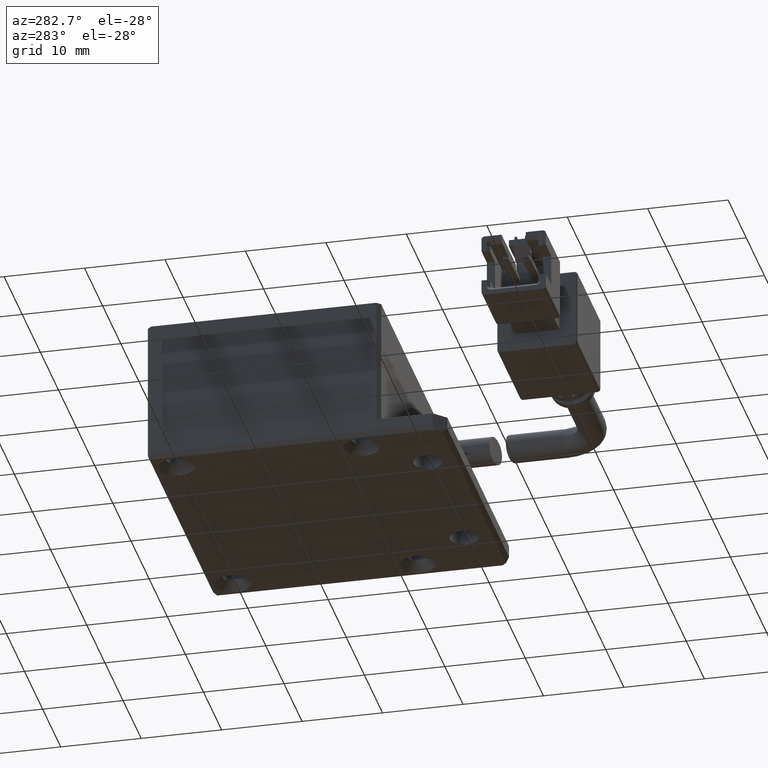
[diagram: clean part render]
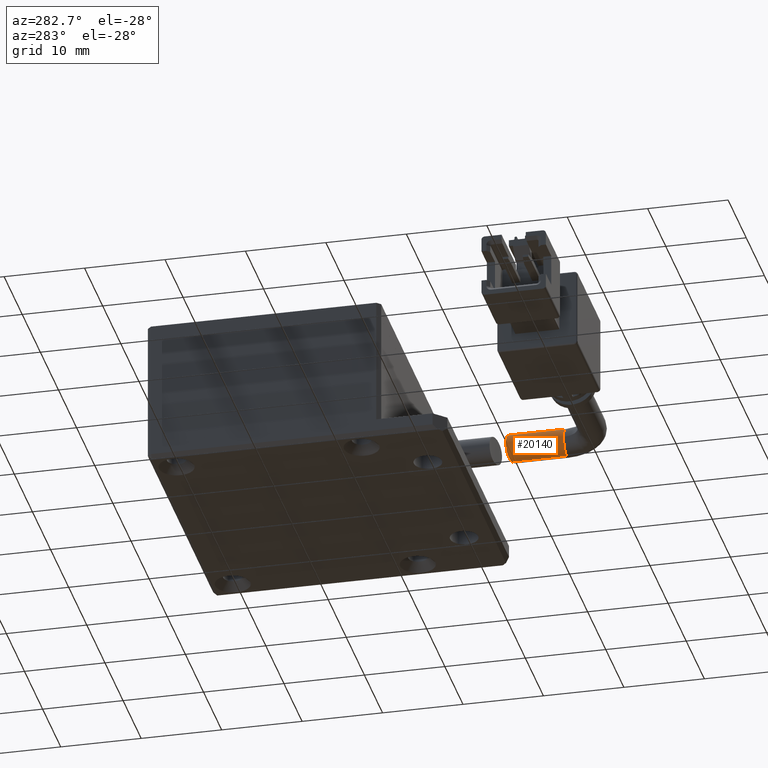
[diagram: same view with one face highlighted and labeled with its STEP entity id]
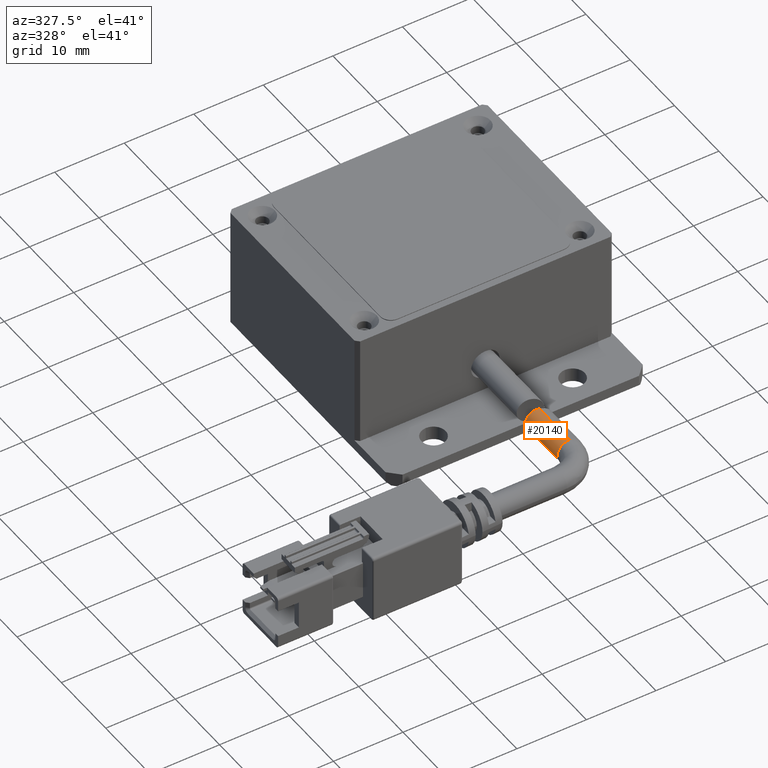
[diagram: same view with one face highlighted and labeled with its STEP entity id]
A machine part, auxiliary view. The second image highlights one B-rep face of the part: STEP entity #20140.
A second angle (auxiliary view) of the same face is appended — the face is thin or edge-on in the first view.
In plain terms, the highlighted cylindrical surface (edge-blend (fillet) strip) has radius 1.75 mm, axis along (-0, 1, 0).
Its self-contained STEP definition (entity closure, byte-faithful):
#46 = VERTEX_POINT ( 'NONE', #6970 ) ;
#440 = VERTEX_POINT ( 'NONE', #19045 ) ;
#611 = CARTESIAN_POINT ( 'NONE',  ( 0.2452600097851520300, -27.20333256233376700, 5.739056602235873300 ) ) ;
#680 = CARTESIAN_POINT ( 'NONE',  ( -1.279519287267200800, -26.87800755873524500, 3.886318930238931800 ) ) ;
#752 = CARTESIAN_POINT ( 'NONE',  ( 0.2435046633691347600, -27.20281811077919400, 2.249999999983630400 ) ) ;
#2170 = CARTESIAN_POINT ( 'NONE',  ( -0.08459173293410250600, -27.12333227706190900, 5.663483449324457900 ) ) ;
#2186 = DIRECTION ( 'NONE',  ( -6.162975822039154700E-033, 1.000000000000000000, 0.0000000000000000000 ) ) ;
#2245 = CARTESIAN_POINT ( 'NONE',  ( -1.222303235186197100, -26.88723953335685800, 3.541711821612489000 ) ) ;
#2258 = ORIENTED_EDGE ( 'NONE', *, *, #6270, .F. ) ;
#2515 = LINE ( 'NONE', #17087, #6135 ) ;
#3751 = CARTESIAN_POINT ( 'NONE',  ( -0.3951779284447604100, -27.05142310167667200, 5.525071375225639500 ) ) ;
#3828 = CARTESIAN_POINT ( 'NONE',  ( -1.099193011287674000, -26.90823696468707400, 3.217920643674270200 ) ) ;
#3848 = DIRECTION ( 'NONE',  ( 0.0000000000000000000, 0.0000000000000000000, -1.000000000000000000 ) ) ;
#4640 = CARTESIAN_POINT ( 'NONE',  ( 0.4705994654448234500, -34.05364642993505000, 5.749999999983630000 ) ) ;
#4894 = LINE ( 'NONE', #4640, #12742 ) ;
#5314 = CARTESIAN_POINT ( 'NONE',  ( -0.6757712382793642500, -26.99041040257456800, 5.327197117374365300 ) ) ;
#5388 = CARTESIAN_POINT ( 'NONE',  ( -0.9145691337533155000, -26.94235202430891400, 2.924358018452224000 ) ) ;
#5478 = VERTEX_POINT ( 'NONE', #14498 ) ;
#6135 = VECTOR ( 'NONE', #15531, 1000.000000000000000 ) ;
#6270 = EDGE_CURVE ( 'NONE', #46, #5478, #13754, .T. ) ;
#6715 = EDGE_CURVE ( 'NONE', #10077, #46, #13018, .T. ) ;
#6863 = EDGE_CURVE ( 'NONE', #10077, #440, #4894, .T. ) ;
#6876 = CARTESIAN_POINT ( 'NONE',  ( -0.9123115448872086700, -26.94278530044179100, 5.078601961225644800 ) ) ;
#6943 = CARTESIAN_POINT ( 'NONE',  ( -0.6764877850143830000, -26.99025578251614000, 2.673313212597746300 ) ) ;
#6970 = CARTESIAN_POINT ( 'NONE',  ( -1.279400534555176400, -34.05364642993505000, 3.999999999983630400 ) ) ;
#7076 = EDGE_CURVE ( 'NONE', #440, #9849, #14555, .T. ) ;
#7206 = EDGE_CURVE ( 'NONE', #5478, #9849, #2515, .T. ) ;
#7940 = CARTESIAN_POINT ( 'NONE',  ( 0.4705994654448236700, -34.05364642993505000, 3.999999999983630400 ) ) ;
#8379 = ORIENTED_EDGE ( 'NONE', *, *, #7076, .T. ) ;
#8467 = CARTESIAN_POINT ( 'NONE',  ( -1.097927890729691200, -26.90846123897170000, 4.784531324799246500 ) ) ;
#8547 = CARTESIAN_POINT ( 'NONE',  ( -0.3978064653006773100, -27.05083243922934600, 2.476425465575045100 ) ) ;
#8962 = CARTESIAN_POINT ( 'NONE',  ( 0.4705994654448236700, -34.05364642993505000, 3.999999999983630400 ) ) ;
#9340 = EDGE_LOOP ( 'NONE', ( #17709, #15681, #8379, #13642, #2258 ) ) ;
#9493 = DIRECTION ( 'NONE',  ( 1.000000000000000000, 0.0000000000000000000, 0.0000000000000000000 ) ) ;
#9849 = VERTEX_POINT ( 'NONE', #17244 ) ;
#10008 = CARTESIAN_POINT ( 'NONE',  ( -1.279160209847827400, -26.87806455576740200, 4.232802954368057000 ) ) ;
#10077 = VERTEX_POINT ( 'NONE', #14830 ) ;
#10080 = CARTESIAN_POINT ( 'NONE',  ( 0.01944674899311930200, -27.14762926867686900, 2.293982588345354400 ) ) ;
#10515 = DIRECTION ( 'NONE',  ( 1.000000000000000000, 0.0000000000000000000, 0.0000000000000000000 ) ) ;
#10907 = AXIS2_PLACEMENT_3D ( 'NONE', #7940, #18776, #9493 ) ;
#11526 = CARTESIAN_POINT ( 'NONE',  ( 0.02496185331614199700, -27.14959919842991500, 5.696025605559903200 ) ) ;
#11603 = CARTESIAN_POINT ( 'NONE',  ( -1.267972409514772900, -26.87981943265807400, 3.769098627449780200 ) ) ;
#11683 = CARTESIAN_POINT ( 'NONE',  ( 0.4705994654448236700, -27.25921603604882600, 2.249999999983630000 ) ) ;
#12742 = VECTOR ( 'NONE', #15544, 1000.000000000000000 ) ;
#13018 = CIRCLE ( 'NONE', #14334, 1.749999999999999800 ) ;
#13144 = CARTESIAN_POINT ( 'NONE',  ( -0.2950688147132116700, -27.07416301121804400, 5.577709269065904300 ) ) ;
#13207 = CARTESIAN_POINT ( 'NONE',  ( -1.188520566319569500, -26.89279895207828700, 3.431478004130055700 ) ) ;
#13642 = ORIENTED_EDGE ( 'NONE', *, *, #7206, .F. ) ;
#13754 = CIRCLE ( 'NONE', #10907, 1.749999999999999800 ) ;
#14334 = AXIS2_PLACEMENT_3D ( 'NONE', #8962, #19803, #10515 ) ;
#14498 = CARTESIAN_POINT ( 'NONE',  ( 0.4705994654448236700, -34.05364642993505000, 2.249999999983630000 ) ) ;
#14555 = B_SPLINE_CURVE_WITH_KNOTS ( 'NONE', 3,
 ( #19231, #14602, #611, #11526, #2170, #13144, #3751, #14666, #5314, #16228, #6876, #17749, #8467, #19306, #10008, #680, #11603, #2245, #13207, #3828, #14747, #5388, #16299, #6943, #17809, #8547, #19379, #10080, #752, #11683 ),
 .UNSPECIFIED., .F., .F.,
 ( 4, 2, 2, 2, 2, 2, 2, 2, 2, 2, 2, 2, 2, 2, 4 ),
 ( 0.005543457705843022000, 0.005889546929886216500, 0.006235636153929411000, 0.006581725377972605500, 0.006927814602015800100, 0.007273903826058994600, 0.007619993050102189100, 0.008312171498188580800, 0.008658260722231775300, 0.009004349946274971600, 0.009350439170318167900, 0.009696528394361362400, 0.01004261761840455700, 0.01038870684244775500, 0.01108088529053414400 ),
 .UNSPECIFIED. ) ;
#14602 = CARTESIAN_POINT ( 'NONE',  ( 0.3570438799052290700, -27.23101504083153300, 5.749999999982570400 ) ) ;
#14666 = CARTESIAN_POINT ( 'NONE',  ( -0.5851367675855607700, -27.00962045135763700, 5.400297897439599200 ) ) ;
#14747 = CARTESIAN_POINT ( 'NONE',  ( -1.043299927648960100, -26.91819711370314700, 3.114671615581763300 ) ) ;
#14830 = CARTESIAN_POINT ( 'NONE',  ( 0.4705994654448234500, -34.05364642993505000, 5.749999999983630900 ) ) ;
#15531 = DIRECTION ( 'NONE',  ( -6.162975822039154700E-033, 1.000000000000000000, 0.0000000000000000000 ) ) ;
#15544 = DIRECTION ( 'NONE',  ( -6.162975822039154700E-033, 1.000000000000000000, 0.0000000000000000000 ) ) ;
#15681 = ORIENTED_EDGE ( 'NONE', *, *, #6863, .T. ) ;
#16228 = CARTESIAN_POINT ( 'NONE',  ( -0.8389757934518818900, -26.95708371996876800, 5.166460723734324700 ) ) ;
#16239 = AXIS2_PLACEMENT_3D ( 'NONE', #17767, #2186, #3848 ) ;
#16299 = CARTESIAN_POINT ( 'NONE',  ( -0.8412831068135762100, -26.95662101567517500, 2.836010692217006300 ) ) ;
#17087 = CARTESIAN_POINT ( 'NONE',  ( 0.4705994654448236700, -34.05364642993505000, 2.249999999983630400 ) ) ;
#17244 = CARTESIAN_POINT ( 'NONE',  ( 0.4705994654448236700, -27.25921603604882600, 2.249999999983630000 ) ) ;
#17251 = FACE_OUTER_BOUND ( 'NONE', #9340, .T. ) ;
#17709 = ORIENTED_EDGE ( 'NONE', *, *, #6715, .F. ) ;
#17749 = CARTESIAN_POINT ( 'NONE',  ( -1.042007378630152900, -26.91843024275081600, 4.887606663179792800 ) ) ;
#17767 = CARTESIAN_POINT ( 'NONE',  ( 0.4705994654448236700, -34.05364642993505000, 3.999999999983630400 ) ) ;
#17809 = CARTESIAN_POINT ( 'NONE',  ( -0.5875148245012435900, -27.00910968139701400, 2.601499956414011500 ) ) ;
#18776 = DIRECTION ( 'NONE',  ( -1.836970198721029700E-016, -1.000000000000000000, 1.232595164407830900E-032 ) ) ;
#19045 = CARTESIAN_POINT ( 'NONE',  ( 0.4705994654448241200, -27.25921603604883000, 5.749999999983630900 ) ) ;
#19231 = CARTESIAN_POINT ( 'NONE',  ( 0.4705994654448241200, -27.25921603604883000, 5.749999999983630900 ) ) ;
#19306 = CARTESIAN_POINT ( 'NONE',  ( -1.231874787897236700, -26.88529524790412500, 4.465994939276349400 ) ) ;
#19379 = CARTESIAN_POINT ( 'NONE',  ( -0.2958193997448675400, -27.07399134013817800, 2.422665010618552100 ) ) ;
#19419 = CYLINDRICAL_SURFACE ( 'NONE', #16239, 1.749999999999999800 ) ;
#19803 = DIRECTION ( 'NONE',  ( -1.836970198721029700E-016, -1.000000000000000000, 1.232595164407830900E-032 ) ) ;
#20140 = ADVANCED_FACE ( 'NONE', ( #17251 ), #19419, .T. ) ;